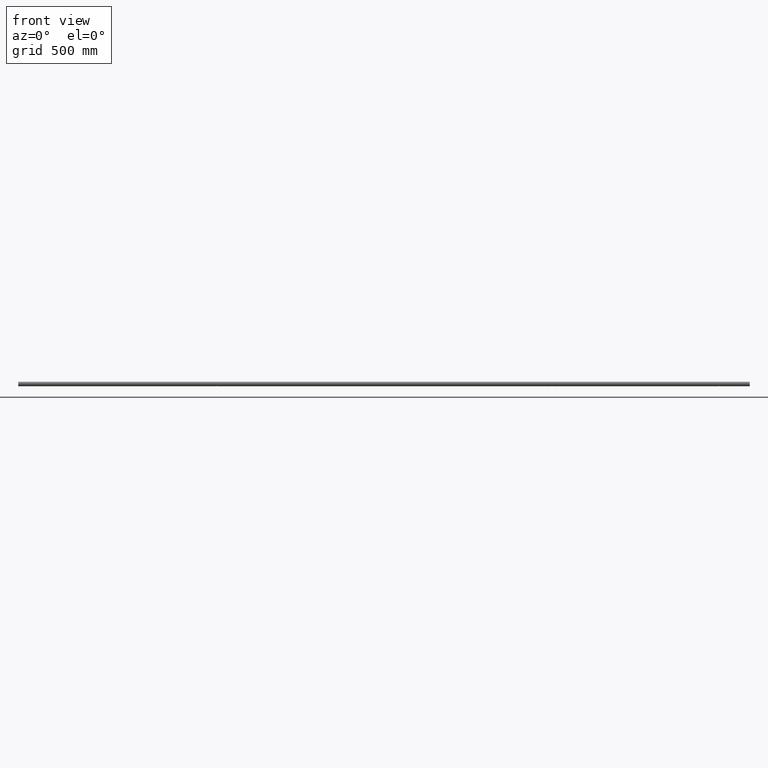
[diagram: clean part render]
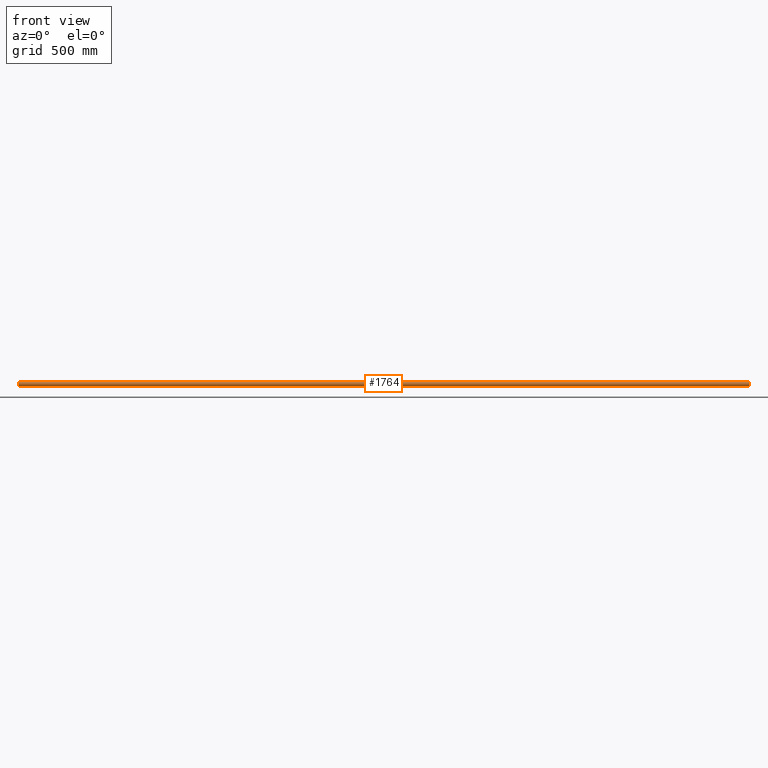
[diagram: same view with one face highlighted and labeled with its STEP entity id]
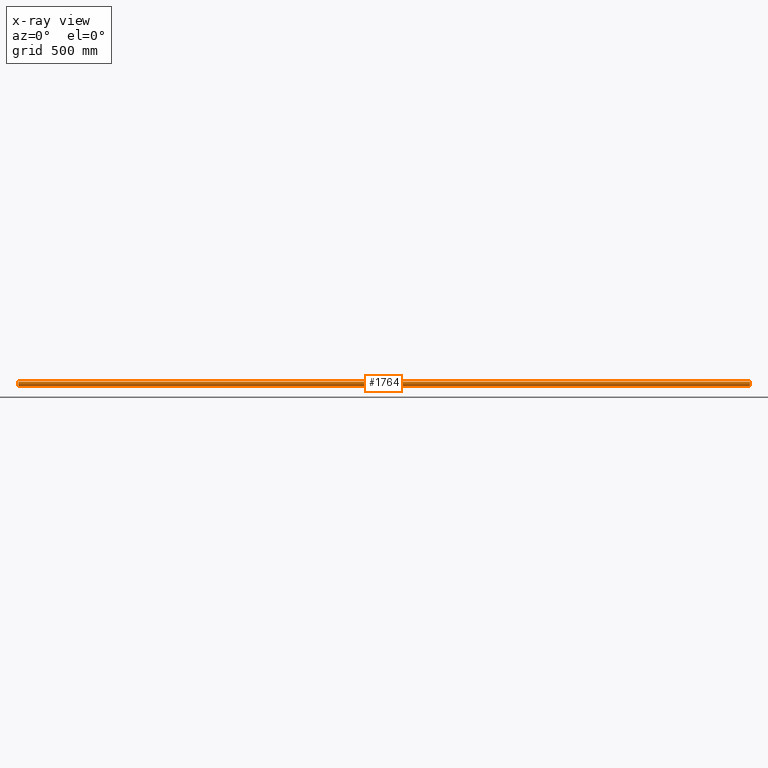
[diagram: x-ray of the same camera — body ghosted, the highlighted face saturated]
A machine part, front view. The second image highlights one B-rep face of the part: STEP entity #1764.
The next image is the same camera in x-ray: the body ghosted, the highlighted face saturated — about 0% of this face is hidden behind the body in this view.
In plain terms, the highlighted cylindrical surface (edge-blend (fillet) strip) has radius 12.5 mm, axis along (-1, -0, -0).
Its self-contained STEP definition (entity closure, byte-faithful):
#2 = CARTESIAN_POINT ( 'NONE',  ( -1882.702327577358800, -2.075249282755465200, -12.32794158140092300 ) ) ;
#201 = CARTESIAN_POINT ( 'NONE',  ( -937.9095874590755100, -2.718083123427828400, -12.20511272832640500 ) ) ;
#342 = CARTESIAN_POINT ( 'NONE',  ( -943.0536700109806800, -1.511526726006549200, -12.40999792042050500 ) ) ;
#364 = CARTESIAN_POINT ( 'NONE',  ( -2.076778553575692900, -2.701278004671923600, -12.20530089315860600 ) ) ;
#379 = VERTEX_POINT ( 'NONE', #5927 ) ;
#427 = DIRECTION ( 'NONE',  ( -1.000000000000000000, -0.0000000000000000000, -0.0000000000000000000 ) ) ;
#451 = EDGE_CURVE ( 'NONE', #1970, #15213, #7162, .T. ) ;
#482 = CARTESIAN_POINT ( 'NONE',  ( 1879.554234738915500, -3.378089484675445700, -12.03497327294807200 ) ) ;
#535 = CARTESIAN_POINT ( 'NONE',  ( 1883.225220202860600, -1.098761744103553500, -12.45332302889326700 ) ) ;
#696 = CARTESIAN_POINT ( 'NONE',  ( 1876.599999999999900, -9.932824226667062300E-015, -12.50000000000000000 ) ) ;
#720 = DIRECTION ( 'NONE',  ( 1.000000000000000000, 0.0000000000000000000, 0.0000000000000000000 ) ) ;
#744 = CARTESIAN_POINT ( 'NONE',  ( 0.8849586188828703100, -3.290362799234785500, -12.05925230465093100 ) ) ;
#780 = VERTEX_POINT ( 'NONE', #9551 ) ;
#799 = CARTESIAN_POINT ( 'NONE',  ( 1.097439066445784300, -3.225774224939500300, -12.07692960344454400 ) ) ;
#1055 = CARTESIAN_POINT ( 'NONE',  ( 942.7019317768553000, -2.075686207071268300, -12.32785800513539000 ) ) ;
#1094 = CARTESIAN_POINT ( 'NONE',  ( 2050.000000000000000, 0.0000000000000000000, 0.0000000000000000000 ) ) ;
#1202 = AXIS2_PLACEMENT_3D ( 'NONE', #2189, #5763, #8205 ) ;
#1210 = CARTESIAN_POINT ( 'NONE',  ( 1876.599999999999900, -9.932824226667062300E-015, -12.50000000000000000 ) ) ;
#1377 = CARTESIAN_POINT ( 'NONE',  ( -936.6000000000001400, -0.2225510969395910800, -12.49999999999999800 ) ) ;
#1428 = CARTESIAN_POINT ( 'NONE',  ( -940.8851843544656500, -3.290386587176774100, -12.05924650855003400 ) ) ;
#1523 = CARTESIAN_POINT ( 'NONE',  ( -937.2980682231448100, -2.075686207071268300, -12.32785800513539000 ) ) ;
#1592 = CARTESIAN_POINT ( 'NONE',  ( -1.509289143032030800, -3.054671048340748700, -12.12133177702796900 ) ) ;
#1712 = CARTESIAN_POINT ( 'NONE',  ( 1880.448006914226200, -3.377710602246637900, -12.03507891894721000 ) ) ;
#1718 = VECTOR ( 'NONE', #7351, 1000.000000000000000 ) ;
#1733 = LINE ( 'NONE', #9927, #4185 ) ;
#1764 = ADVANCED_FACE ( 'NONE', ( #15282 ), #3413, .T. ) ;
#1914 = CARTESIAN_POINT ( 'NONE',  ( 3.377728582763543000, -0.4482571319650707200, -12.49388896063694600 ) ) ;
#1969 = CARTESIAN_POINT ( 'NONE',  ( 2.090412540924479600, -2.718083123427877300, -12.20511272832640000 ) ) ;
#1970 = VERTEX_POINT ( 'NONE', #13478 ) ;
#2004 = ORIENTED_EDGE ( 'NONE', *, *, #451, .T. ) ;
#2134 = CARTESIAN_POINT ( 'NONE',  ( 940.4480069142262000, -3.377710602246517100, -12.03507891894724400 ) ) ;
#2140 = CARTESIAN_POINT ( 'NONE',  ( 2050.000000000000000, 1.530808498934191500E-015, -12.50000000000000000 ) ) ;
#2184 = CARTESIAN_POINT ( 'NONE',  ( 942.0904125409243800, -2.718083123427828400, -12.20511272832640500 ) ) ;
#2189 = CARTESIAN_POINT ( 'NONE',  ( 2050.000000000000000, 0.0000000000000000000, 0.0000000000000000000 ) ) ;
#2238 = CARTESIAN_POINT ( 'NONE',  ( -1877.051946665332000, -1.708183272649724100, -12.38412960736628500 ) ) ;
#2285 = CARTESIAN_POINT ( 'NONE',  ( -1882.949123524426300, -1.706430297025294900, -12.38438124661079500 ) ) ;
#2338 = CARTESIAN_POINT ( 'NONE',  ( -1882.559440054320500, -2.248989797497722900, -12.29704468854002600 ) ) ;
#2420 = ORIENTED_EDGE ( 'NONE', *, *, #9092, .T. ) ;
#2484 = EDGE_CURVE ( 'NONE', #1970, #2924, #9575, .T. ) ;
#2570 = B_SPLINE_CURVE_WITH_KNOTS ( 'NONE', 3,
 ( #696, #11415, #4243, #15086, #9102, #11520, #12538, #4190, #4344, #5448, #13987, #10149, #7805, #6768, #7701, #482, #5395, #8889, #1712, #14984, #6602, #10093, #2923, #11311, #4135, #15041, #5345, #535, #8944, #2983, #10201, #4769 ),
 .UNSPECIFIED., .F., .F.,
 ( 4, 2, 2, 2, 2, 2, 2, 2, 2, 2, 2, 2, 2, 2, 2, 4 ),
 ( 9.720594809790037100E-018, 0.0006675304755107431400, 0.001335060951021476500, 0.002002591426532209900, 0.002670121902042943100, 0.003337652377553676700, 0.004005182853064410300, 0.004672713328575143000, 0.005340243804085876600, 0.006007774279596610200, 0.006675304755107343800, 0.008010365706129419000, 0.008677896181640224600, 0.009345426657151028500, 0.01001295713266183600, 0.01068048760817264100 ),
 .UNSPECIFIED. ) ;
#2635 = CARTESIAN_POINT ( 'NONE',  ( -938.9025609335540100, -3.225774224939494900, -12.07692960344454000 ) ) ;
#2678 = CARTESIAN_POINT ( 'NONE',  ( -943.2906811211504400, -0.8836557597777396900, -12.47063843226399300 ) ) ;
#2691 = VECTOR ( 'NONE', #14098, 1000.000000000000000 ) ;
#2703 = CARTESIAN_POINT ( 'NONE',  ( -3.290681121150602600, -0.8836557597777386900, -12.47063843226399100 ) ) ;
#2783 = CARTESIAN_POINT ( 'NONE',  ( -936.6222714172364500, -0.4482571319650472400, -12.49388896063694300 ) ) ;
#2790 = LINE ( 'NONE', #8701, #7315 ) ;
#2804 = CARTESIAN_POINT ( 'NONE',  ( -0.8851843544657876900, -3.290386587176837600, -12.05924650855002200 ) ) ;
#2923 = CARTESIAN_POINT ( 'NONE',  ( 1882.090412540924700, -2.718083123427897700, -12.20511272832639300 ) ) ;
#2924 = VERTEX_POINT ( 'NONE', #8900 ) ;
#2983 = CARTESIAN_POINT ( 'NONE',  ( 1883.377728582763700, -0.4482571319650916500, -12.49388896063694300 ) ) ;
#3022 = AXIS2_PLACEMENT_3D ( 'NONE', #13921, #6698, #4381 ) ;
#3128 = VERTEX_POINT ( 'NONE', #8077 ) ;
#3292 = CARTESIAN_POINT ( 'NONE',  ( 937.9232214464242400, -2.701278004671885800, -12.20530089315861700 ) ) ;
#3340 = CARTESIAN_POINT ( 'NONE',  ( 940.2214708092431000, -3.400096623084107000, -12.02868833097944700 ) ) ;
#3389 = CARTESIAN_POINT ( 'NONE',  ( 941.0974390664456500, -3.225774224939494900, -12.07692960344454000 ) ) ;
#3395 = CARTESIAN_POINT ( 'NONE',  ( -1877.909587459075500, -2.718083123427897700, -12.20511272832639300 ) ) ;
#3413 = CYLINDRICAL_SURFACE ( 'NONE', #1202, 12.50000000000000000 ) ;
#3497 = CARTESIAN_POINT ( 'NONE',  ( -1883.399999999999900, -9.932824226667062300E-015, -12.50000000000000000 ) ) ;
#3691 = ORIENTED_EDGE ( 'NONE', *, *, #9382, .T. ) ;
#3728 = VERTEX_POINT ( 'NONE', #12229 ) ;
#3901 = CARTESIAN_POINT ( 'NONE',  ( -941.7054526404525600, -2.949803944381664200, -12.14763061015492900 ) ) ;
#3913 = ORIENTED_EDGE ( 'NONE', *, *, #7704, .T. ) ;
#3921 = CARTESIAN_POINT ( 'NONE',  ( -3.224770506350070200, -1.100213052444122700, -12.45320411249670300 ) ) ;
#3943 = CARTESIAN_POINT ( 'NONE',  ( -937.4379886708794600, -2.246229744202054700, -12.29756642919714300 ) ) ;
#3991 = CARTESIAN_POINT ( 'NONE',  ( -942.2472831817785800, -2.560938656392412100, -12.23588396395595300 ) ) ;
#4128 = CARTESIAN_POINT ( 'NONE',  ( -3.399999999999987900, -3.085611381634476200E-019, -12.50000000000000000 ) ) ;
#4135 = CARTESIAN_POINT ( 'NONE',  ( 1882.701931776855400, -2.075686207071323300, -12.32785800513537900 ) ) ;
#4173 = VECTOR ( 'NONE', #12690, 1000.000000000000000 ) ;
#4185 = VECTOR ( 'NONE', #427, 1000.000000000000000 ) ;
#4190 = CARTESIAN_POINT ( 'NONE',  ( 1877.297672422640300, -2.075249282755465200, -12.32794158140092300 ) ) ;
#4221 = ORIENTED_EDGE ( 'NONE', *, *, #4880, .F. ) ;
#4243 = CARTESIAN_POINT ( 'NONE',  ( 1876.622267002547500, -0.4476042234037827500, -12.49389134214153100 ) ) ;
#4247 = ORIENTED_EDGE ( 'NONE', *, *, #12972, .T. ) ;
#4291 = CARTESIAN_POINT ( 'NONE',  ( 0.4480069142262558800, -3.377710602246544200, -12.03507891894723500 ) ) ;
#4304 = ORIENTED_EDGE ( 'NONE', *, *, #12801, .F. ) ;
#4344 = CARTESIAN_POINT ( 'NONE',  ( 1877.440559945678600, -2.248989797497722900, -12.29704468854002600 ) ) ;
#4381 = DIRECTION ( 'NONE',  ( 0.0000000000000000000, 0.0000000000000000000, -1.000000000000000000 ) ) ;
#4503 = CARTESIAN_POINT ( 'NONE',  ( 942.9480533346677500, -1.708183272649670600, -12.38412960736629600 ) ) ;
#4551 = CARTESIAN_POINT ( 'NONE',  ( 943.2899460591240800, -0.8867016201782428300, -12.47044329820943000 ) ) ;
#4603 = CARTESIAN_POINT ( 'NONE',  ( 936.6000000000000200, 1.240253457150525300E-014, -12.50000000000000000 ) ) ;
#4656 = CARTESIAN_POINT ( 'NONE',  ( -1883.224770506349400, -1.100213052444138300, -12.45320411249670500 ) ) ;
#4700 = CARTESIAN_POINT ( 'NONE',  ( 937.2976724226412000, -2.075249282755358600, -12.32794158140094800 ) ) ;
#4705 = CARTESIAN_POINT ( 'NONE',  ( -1879.551993085774300, -3.377710602246637900, -12.03507891894721000 ) ) ;
#4769 = CARTESIAN_POINT ( 'NONE',  ( 1883.399999999999900, 1.530817149939125600E-015, -12.50000000000000000 ) ) ;
#4788 = EDGE_CURVE ( 'NONE', #379, #3728, #2790, .T. ) ;
#4880 = EDGE_CURVE ( 'NONE', #6547, #379, #5051, .T. ) ;
#5005 = CARTESIAN_POINT ( 'NONE',  ( -942.0767785535758800, -2.701278004671885800, -12.20530089315861700 ) ) ;
#5051 = CIRCLE ( 'NONE', #15560, 12.50000000000000000 ) ;
#5079 = EDGE_CURVE ( 'NONE', #6547, #6556, #5115, .T. ) ;
#5115 = LINE ( 'NONE', #15175, #4173 ) ;
#5174 = CARTESIAN_POINT ( 'NONE',  ( -2.949123524426435800, -1.706430297025202800, -12.38438124661081100 ) ) ;
#5205 = CARTESIAN_POINT ( 'NONE',  ( -941.1006064769321700, -3.224536294380859300, -12.07725403179794700 ) ) ;
#5345 = CARTESIAN_POINT ( 'NONE',  ( 1883.054883340169200, -1.508976641703941400, -12.41029900232306100 ) ) ;
#5395 = CARTESIAN_POINT ( 'NONE',  ( 1879.775572362254500, -3.399902734060400000, -12.02874313505271600 ) ) ;
#5448 = CARTESIAN_POINT ( 'NONE',  ( 1877.752716818221600, -2.560938656392546300, -12.23588396395592600 ) ) ;
#5484 = CARTESIAN_POINT ( 'NONE',  ( 3.289946059124464000, -0.8867016201782708100, -12.47044329820943200 ) ) ;
#5595 = CARTESIAN_POINT ( 'NONE',  ( 3.054883340169159300, -1.508976641703949000, -12.41029900232305900 ) ) ;
#5702 = CARTESIAN_POINT ( 'NONE',  ( 943.2252202028612400, -1.098761744103555300, -12.45332302889326900 ) ) ;
#5758 = CARTESIAN_POINT ( 'NONE',  ( 941.7169160836186800, -2.968529363370429100, -12.14369076542070200 ) ) ;
#5763 = DIRECTION ( 'NONE',  ( -1.000000000000000000, -0.0000000000000000000, -0.0000000000000000000 ) ) ;
#5813 = CARTESIAN_POINT ( 'NONE',  ( -1882.076778553575700, -2.701278004672002600, -12.20530089315859000 ) ) ;
#5852 = CARTESIAN_POINT ( 'NONE',  ( 936.7752294936501600, -1.100213052444112300, -12.45320411249670800 ) ) ;
#5857 = CARTESIAN_POINT ( 'NONE',  ( -1880.224427637746200, -3.399902734060400000, -12.02874313505271600 ) ) ;
#5914 = CARTESIAN_POINT ( 'NONE',  ( -1878.283083916381000, -2.968529363370431300, -12.14369076542070200 ) ) ;
#5927 = CARTESIAN_POINT ( 'NONE',  ( 2050.000000000000000, 1.530808498934191500E-015, -12.50000000000000000 ) ) ;
#5963 = CIRCLE ( 'NONE', #3022, 12.50000000000000000 ) ;
#5967 = CARTESIAN_POINT ( 'NONE',  ( -1879.778529190756900, -3.400096623084212200, -12.02868833097942600 ) ) ;
#6018 = CARTESIAN_POINT ( 'NONE',  ( -1883.399999999999600, -0.2257922536967062700, -12.50000000000000200 ) ) ;
#6223 = CARTESIAN_POINT ( 'NONE',  ( -943.3777329974519700, -0.4476042234037524400, -12.49389134214153300 ) ) ;
#6245 = CARTESIAN_POINT ( 'NONE',  ( 2050.000000000000000, 1.530808498934191500E-015, -12.50000000000000000 ) ) ;
#6267 = CARTESIAN_POINT ( 'NONE',  ( -939.5519930857736900, -3.377710602246517100, -12.03507891894724400 ) ) ;
#6317 = CARTESIAN_POINT ( 'NONE',  ( -938.2830839163809700, -2.968529363370429100, -12.14369076542070200 ) ) ;
#6387 = EDGE_LOOP ( 'NONE', ( #8846, #4221, #8746, #10639, #12651, #2004, #7801, #3691, #13246, #3913, #11990, #2420, #4304, #4247 ) ) ;
#6390 = CARTESIAN_POINT ( 'NONE',  ( -2.247283181778617000, -2.560938656392451200, -12.23588396395594200 ) ) ;
#6424 = CARTESIAN_POINT ( 'NONE',  ( 2050.000000000000000, 1.530808498934191500E-015, -12.50000000000000000 ) ) ;
#6535 = CARTESIAN_POINT ( 'NONE',  ( -943.3999999999998600, 1.240253457150525300E-014, -12.50000000000000000 ) ) ;
#6547 = VERTEX_POINT ( 'NONE', #7869 ) ;
#6556 = VERTEX_POINT ( 'NONE', #13995 ) ;
#6576 = B_SPLINE_CURVE_WITH_KNOTS ( 'NONE', 3,
 ( #4603, #10616, #7064, #14256, #5852, #15345, #10671, #4700, #15544, #14312, #3292, #15494, #8101, #11676, #9295, #15446, #10563, #3340, #2134, #8201, #3389, #5758, #2184, #11782, #1055, #4503, #12904, #5702, #4551, #13013, #14148, #6916 ),
 .UNSPECIFIED., .F., .F.,
 ( 4, 2, 2, 2, 2, 2, 2, 2, 2, 2, 2, 2, 2, 2, 2, 4 ),
 ( 1.197015388918840900E-017, 0.0006675304755107222200, 0.001335060951021432500, 0.002002591426532143100, 0.002670121902042853300, 0.003337652377553563000, 0.004005182853064274100, 0.004672713328574984300, 0.005340243804085694500, 0.006007774279596404600, 0.006675304755107113900, 0.008010365706128837900, 0.008677896181639699000, 0.009345426657150558400, 0.01001295713266142100, 0.01068048760817228200 ),
 .UNSPECIFIED. ) ;
#6602 = CARTESIAN_POINT ( 'NONE',  ( 1881.097439066446400, -3.225774224939543800, -12.07692960344453700 ) ) ;
#6652 = CARTESIAN_POINT ( 'NONE',  ( 3.399999999999987900, 1.530817148184698900E-015, -12.50000000000000000 ) ) ;
#6698 = DIRECTION ( 'NONE',  ( 1.000000000000000000, 0.0000000000000000000, 0.0000000000000000000 ) ) ;
#6768 = CARTESIAN_POINT ( 'NONE',  ( 1878.899393523066900, -3.224536294380904600, -12.07725403179793300 ) ) ;
#6809 = CARTESIAN_POINT ( 'NONE',  ( 3.399999999999987000, -0.2225510969395936800, -12.50000000000000000 ) ) ;
#6916 = CARTESIAN_POINT ( 'NONE',  ( 943.3999999999998600, 1.530817147818667500E-015, -12.50000000000000000 ) ) ;
#7015 = DIRECTION ( 'NONE',  ( -1.000000000000000000, -0.0000000000000000000, -0.0000000000000000000 ) ) ;
#7064 = CARTESIAN_POINT ( 'NONE',  ( 936.6222670025480300, -0.4476042234037524400, -12.49389134214153300 ) ) ;
#7070 = CARTESIAN_POINT ( 'NONE',  ( -1878.902560933554700, -3.225774224939543800, -12.07692960344453700 ) ) ;
#7123 = CARTESIAN_POINT ( 'NONE',  ( -1876.622271417236300, -0.4482571319650916500, -12.49388896063694300 ) ) ;
#7158 = VECTOR ( 'NONE', #8866, 1000.000000000000000 ) ;
#7162 = B_SPLINE_CURVE_WITH_KNOTS ( 'NONE', 3,
 ( #3497, #6018, #14473, #15549, #4656, #9400, #2285, #2, #2338, #15450, #5813, #13072, #11890, #11944, #13124, #13172, #5857, #5967, #4705, #14317, #7070, #5914, #3395, #10568, #14420, #2238, #7226, #14364, #8207, #7123, #10621, #8304 ),
 .UNSPECIFIED., .F., .F.,
 ( 4, 2, 2, 2, 2, 2, 2, 2, 2, 2, 2, 2, 2, 2, 2, 4 ),
 ( 9.720594809790037100E-018, 0.0006675304755107431400, 0.001335060951021476500, 0.002002591426532209900, 0.002670121902042943100, 0.003337652377553676700, 0.004005182853064410300, 0.004672713328575143000, 0.005340243804085876600, 0.006007774279596610200, 0.006675304755107343800, 0.008010365706129419000, 0.008677896181640224600, 0.009345426657151028500, 0.01001295713266183600, 0.01068048760817264100 ),
 .UNSPECIFIED. ) ;
#7226 = CARTESIAN_POINT ( 'NONE',  ( -1876.945116659830500, -1.508976641703941400, -12.41029900232306100 ) ) ;
#7303 = VERTEX_POINT ( 'NONE', #13525 ) ;
#7315 = VECTOR ( 'NONE', #12672, 1000.000000000000000 ) ;
#7351 = DIRECTION ( 'NONE',  ( -1.000000000000000000, -0.0000000000000000000, -0.0000000000000000000 ) ) ;
#7475 = CARTESIAN_POINT ( 'NONE',  ( -936.6000000000000200, 1.530817147818667500E-015, -12.50000000000000000 ) ) ;
#7540 = CARTESIAN_POINT ( 'NONE',  ( -2.702327577358867700, -2.075249282755369200, -12.32794158140094100 ) ) ;
#7565 = CARTESIAN_POINT ( 'NONE',  ( -936.7100539408753500, -0.8867016201782428300, -12.47044329820943000 ) ) ;
#7587 = CARTESIAN_POINT ( 'NONE',  ( 936.6000000000000200, 1.240253457150525300E-014, -12.50000000000000000 ) ) ;
#7701 = CARTESIAN_POINT ( 'NONE',  ( 1879.114815645534500, -3.290386587176946400, -12.05924650854999100 ) ) ;
#7704 = EDGE_CURVE ( 'NONE', #780, #3128, #11791, .T. ) ;
#7731 = B_SPLINE_CURVE_WITH_KNOTS ( 'NONE', 3,
 ( #12341, #9802, #6223, #2678, #11071, #342, #12241, #9902, #13524, #3991, #5005, #3901, #8702, #5205, #1428, #11117, #13623, #13472, #6267, #12289, #2635, #6317, #201, #3943, #1523, #14701, #11164, #12394, #7565, #2783, #1377, #7475 ),
 .UNSPECIFIED., .F., .F.,
 ( 4, 2, 2, 2, 2, 2, 2, 2, 2, 2, 2, 2, 2, 2, 2, 4 ),
 ( 1.197015388918840900E-017, 0.0006675304755107222200, 0.001335060951021432500, 0.002002591426532143100, 0.002670121902042853300, 0.003337652377553563000, 0.004005182853064274100, 0.004672713328574984300, 0.005340243804085694500, 0.006007774279596404600, 0.006675304755107113900, 0.008010365706128837900, 0.008677896181639699000, 0.009345426657150558400, 0.01001295713266142100, 0.01068048760817228200 ),
 .UNSPECIFIED. ) ;
#7770 = VERTEX_POINT ( 'NONE', #7851 ) ;
#7801 = ORIENTED_EDGE ( 'NONE', *, *, #7840, .F. ) ;
#7805 = CARTESIAN_POINT ( 'NONE',  ( 1878.490710856967600, -3.054671048340755300, -12.12133177702796700 ) ) ;
#7840 = EDGE_CURVE ( 'NONE', #13337, #15213, #12512, .T. ) ;
#7851 = CARTESIAN_POINT ( 'NONE',  ( 943.3999999999998600, 1.530817147818667500E-015, -12.50000000000000000 ) ) ;
#7869 = CARTESIAN_POINT ( 'NONE',  ( 2050.000000000000000, 0.0000000000000000000, 12.50000000000000000 ) ) ;
#8077 = CARTESIAN_POINT ( 'NONE',  ( 3.399999999999987900, 1.530817148184698900E-015, -12.50000000000000000 ) ) ;
#8101 = CARTESIAN_POINT ( 'NONE',  ( 938.4907108569680100, -3.054671048340733100, -12.12133177702797600 ) ) ;
#8159 = CARTESIAN_POINT ( 'NONE',  ( 2050.000000000000000, 1.530808498934191500E-015, -12.50000000000000000 ) ) ;
#8201 = CARTESIAN_POINT ( 'NONE',  ( 940.8849586188829300, -3.290362799234757100, -12.05925230465093600 ) ) ;
#8205 = DIRECTION ( 'NONE',  ( 0.0000000000000000000, 0.0000000000000000000, 1.000000000000000000 ) ) ;
#8207 = CARTESIAN_POINT ( 'NONE',  ( -1876.710053940874800, -0.8867016201782892400, -12.47044329820942800 ) ) ;
#8304 = CARTESIAN_POINT ( 'NONE',  ( -1876.599999999999900, 1.530817149939125600E-015, -12.50000000000000000 ) ) ;
#8701 = CARTESIAN_POINT ( 'NONE',  ( 2050.000000000000000, 1.530808498934191500E-015, -12.50000000000000000 ) ) ;
#8702 = CARTESIAN_POINT ( 'NONE',  ( -941.5092891430318800, -3.054671048340733100, -12.12133177702797600 ) ) ;
#8723 = CARTESIAN_POINT ( 'NONE',  ( -2.559440054320827300, -2.248989797497623400, -12.29704468854004800 ) ) ;
#8746 = ORIENTED_EDGE ( 'NONE', *, *, #5079, .T. ) ;
#8773 = CARTESIAN_POINT ( 'NONE',  ( -1.705452640452510800, -2.949803944381699700, -12.14763061015491800 ) ) ;
#8846 = ORIENTED_EDGE ( 'NONE', *, *, #4788, .F. ) ;
#8866 = DIRECTION ( 'NONE',  ( -1.000000000000000000, -0.0000000000000000000, -0.0000000000000000000 ) ) ;
#8889 = CARTESIAN_POINT ( 'NONE',  ( 1880.221470809244200, -3.400096623084212200, -12.02868833097942600 ) ) ;
#8900 = CARTESIAN_POINT ( 'NONE',  ( -2050.000000000000000, 1.530808498934191500E-015, -12.50000000000000000 ) ) ;
#8944 = CARTESIAN_POINT ( 'NONE',  ( 1883.289946059124100, -0.8867016201782892400, -12.47044329820942800 ) ) ;
#9092 = EDGE_CURVE ( 'NONE', #9793, #7770, #6576, .T. ) ;
#9102 = CARTESIAN_POINT ( 'NONE',  ( 1876.775229493649200, -1.100213052444138300, -12.45320411249670500 ) ) ;
#9184 = VERTEX_POINT ( 'NONE', #1210 ) ;
#9295 = CARTESIAN_POINT ( 'NONE',  ( 939.1148156455337800, -3.290386587176774100, -12.05924650855003400 ) ) ;
#9382 = EDGE_CURVE ( 'NONE', #13337, #7303, #7731, .T. ) ;
#9400 = CARTESIAN_POINT ( 'NONE',  ( -1883.053670010980800, -1.511526726006590500, -12.40999792042050000 ) ) ;
#9551 = CARTESIAN_POINT ( 'NONE',  ( -3.399999999999987900, -3.085611381634476200E-019, -12.50000000000000000 ) ) ;
#9575 = LINE ( 'NONE', #6424, #7158 ) ;
#9793 = VERTEX_POINT ( 'NONE', #7587 ) ;
#9802 = CARTESIAN_POINT ( 'NONE',  ( -943.4000000000002000, -0.2257922536966986700, -12.50000000000000000 ) ) ;
#9902 = CARTESIAN_POINT ( 'NONE',  ( -942.7023275773589100, -2.075249282755358600, -12.32794158140094800 ) ) ;
#9927 = CARTESIAN_POINT ( 'NONE',  ( 2050.000000000000000, 1.530808498934191500E-015, -12.50000000000000000 ) ) ;
#9970 = CARTESIAN_POINT ( 'NONE',  ( -1.100606476932582500, -3.224536294380879700, -12.07725403179794600 ) ) ;
#10093 = CARTESIAN_POINT ( 'NONE',  ( 1881.716916083619300, -2.968529363370431300, -12.14369076542070200 ) ) ;
#10149 = CARTESIAN_POINT ( 'NONE',  ( 1878.294547359546900, -2.949803944381774700, -12.14763061015489700 ) ) ;
#10194 = CARTESIAN_POINT ( 'NONE',  ( -0.2244276377459111500, -3.399902734060312100, -12.02874313505273700 ) ) ;
#10201 = CARTESIAN_POINT ( 'NONE',  ( 1883.399999999999400, -0.2225510969395958500, -12.49999999999999600 ) ) ;
#10563 = CARTESIAN_POINT ( 'NONE',  ( 939.7755723622541400, -3.399902734060280500, -12.02874313505274300 ) ) ;
#10568 = CARTESIAN_POINT ( 'NONE',  ( -1877.437988670878900, -2.246229744202111500, -12.29756642919713400 ) ) ;
#10616 = CARTESIAN_POINT ( 'NONE',  ( 936.5999999999998000, -0.2257922536966986700, -12.50000000000000000 ) ) ;
#10621 = CARTESIAN_POINT ( 'NONE',  ( -1876.599999999999700, -0.2225510969395958500, -12.49999999999999600 ) ) ;
#10639 = ORIENTED_EDGE ( 'NONE', *, *, #12059, .T. ) ;
#10671 = CARTESIAN_POINT ( 'NONE',  ( 937.0508764755735500, -1.706430297025199200, -12.38438124661081100 ) ) ;
#10916 = EDGE_CURVE ( 'NONE', #780, #7303, #14586, .T. ) ;
#11071 = CARTESIAN_POINT ( 'NONE',  ( -943.2247705063499600, -1.100213052444112300, -12.45320411249670800 ) ) ;
#11117 = CARTESIAN_POINT ( 'NONE',  ( -940.4457652610848300, -3.378089484675302700, -12.03497327294810600 ) ) ;
#11164 = CARTESIAN_POINT ( 'NONE',  ( -936.9451166598308900, -1.508976641703934500, -12.41029900232306300 ) ) ;
#11194 = CARTESIAN_POINT ( 'NONE',  ( -0.4457652610848898400, -3.378089484675349800, -12.03497327294808800 ) ) ;
#11311 = CARTESIAN_POINT ( 'NONE',  ( 1882.562011329120400, -2.246229744202111500, -12.29756642919713400 ) ) ;
#11415 = CARTESIAN_POINT ( 'NONE',  ( 1876.599999999999900, -0.2257922536967062700, -12.50000000000000200 ) ) ;
#11512 = CARTESIAN_POINT ( 'NONE',  ( 2.701931776855448100, -2.075686207071247800, -12.32785800513539300 ) ) ;
#11520 = CARTESIAN_POINT ( 'NONE',  ( 1876.946329989019700, -1.511526726006590500, -12.40999792042050000 ) ) ;
#11676 = CARTESIAN_POINT ( 'NONE',  ( 938.8993935230671500, -3.224536294380859300, -12.07725403179794700 ) ) ;
#11782 = CARTESIAN_POINT ( 'NONE',  ( 942.5620113291200800, -2.246229744202054700, -12.29756642919714300 ) ) ;
#11791 = B_SPLINE_CURVE_WITH_KNOTS ( 'NONE', 3,
 ( #4128, #12532, #13757, #2703, #3921, #12311, #5174, #7540, #8723, #6390, #364, #8773, #1592, #9970, #2804, #11194, #10194, #15184, #4291, #744, #799, #12693, #1969, #13871, #11512, #15131, #5595, #13817, #5484, #1914, #6809, #6652 ),
 .UNSPECIFIED., .F., .F.,
 ( 4, 2, 2, 2, 2, 2, 2, 2, 2, 2, 2, 2, 2, 2, 2, 4 ),
 ( 7.473672456940466300E-020, 0.0006675304755107752300, 0.001335060951021550200, 0.002002591426532325300, 0.002670121902043100100, 0.003337652377553874400, 0.004005182853064649700, 0.004672713328575424900, 0.005340243804086200100, 0.006007774279596974500, 0.006675304755107750600, 0.008010365706129299300, 0.008677896181640073700, 0.009345426657150846300, 0.01001295713266162100, 0.01068048760817239500 ),
 .UNSPECIFIED. ) ;
#11890 = CARTESIAN_POINT ( 'NONE',  ( -1881.509289143032200, -3.054671048340755300, -12.12133177702796700 ) ) ;
#11944 = CARTESIAN_POINT ( 'NONE',  ( -1881.100606476932400, -3.224536294380904600, -12.07725403179793300 ) ) ;
#11990 = ORIENTED_EDGE ( 'NONE', *, *, #14601, .F. ) ;
#12059 = EDGE_CURVE ( 'NONE', #6556, #2924, #5963, .T. ) ;
#12138 = VECTOR ( 'NONE', #7015, 1000.000000000000000 ) ;
#12229 = CARTESIAN_POINT ( 'NONE',  ( 1883.399999999999900, 1.530817149939125600E-015, -12.50000000000000000 ) ) ;
#12241 = CARTESIAN_POINT ( 'NONE',  ( -942.9491235244263400, -1.706430297025199200, -12.38438124661081100 ) ) ;
#12289 = CARTESIAN_POINT ( 'NONE',  ( -939.1150413811170700, -3.290362799234757100, -12.05925230465093600 ) ) ;
#12311 = CARTESIAN_POINT ( 'NONE',  ( -3.053670010980488400, -1.511526726006567000, -12.40999792042050700 ) ) ;
#12341 = CARTESIAN_POINT ( 'NONE',  ( -943.3999999999998600, 1.240253457150525300E-014, -12.50000000000000000 ) ) ;
#12394 = CARTESIAN_POINT ( 'NONE',  ( -936.7747797971383100, -1.098761744103555300, -12.45332302889326900 ) ) ;
#12512 = LINE ( 'NONE', #8159, #12138 ) ;
#12532 = CARTESIAN_POINT ( 'NONE',  ( -3.399999999999987900, -0.2257922536967011100, -12.50000000000000200 ) ) ;
#12538 = CARTESIAN_POINT ( 'NONE',  ( 1877.050876475573200, -1.706430297025294900, -12.38438124661079500 ) ) ;
#12651 = ORIENTED_EDGE ( 'NONE', *, *, #2484, .F. ) ;
#12672 = DIRECTION ( 'NONE',  ( -1.000000000000000000, -0.0000000000000000000, -0.0000000000000000000 ) ) ;
#12690 = DIRECTION ( 'NONE',  ( -1.000000000000000000, -0.0000000000000000000, -0.0000000000000000000 ) ) ;
#12693 = CARTESIAN_POINT ( 'NONE',  ( 1.716916083618982300, -2.968529363370417500, -12.14369076542070800 ) ) ;
#12725 = DIRECTION ( 'NONE',  ( 0.0000000000000000000, 0.0000000000000000000, -1.000000000000000000 ) ) ;
#12801 = EDGE_CURVE ( 'NONE', #9184, #7770, #1733, .T. ) ;
#12904 = CARTESIAN_POINT ( 'NONE',  ( 943.0548833401691100, -1.508976641703934500, -12.41029900232306300 ) ) ;
#12972 = EDGE_CURVE ( 'NONE', #9184, #3728, #2570, .T. ) ;
#13013 = CARTESIAN_POINT ( 'NONE',  ( 943.3777285827633200, -0.4482571319650472400, -12.49388896063694300 ) ) ;
#13072 = CARTESIAN_POINT ( 'NONE',  ( -1881.705452640452000, -2.949803944381774700, -12.14763061015489700 ) ) ;
#13124 = CARTESIAN_POINT ( 'NONE',  ( -1880.885184354465300, -3.290386587176946400, -12.05924650854999100 ) ) ;
#13172 = CARTESIAN_POINT ( 'NONE',  ( -1880.445765261085200, -3.378089484675445700, -12.03497327294807200 ) ) ;
#13197 = LINE ( 'NONE', #6245, #1718 ) ;
#13246 = ORIENTED_EDGE ( 'NONE', *, *, #10916, .F. ) ;
#13337 = VERTEX_POINT ( 'NONE', #6535 ) ;
#13472 = CARTESIAN_POINT ( 'NONE',  ( -939.7785291907566700, -3.400096623084107000, -12.02868833097944700 ) ) ;
#13478 = CARTESIAN_POINT ( 'NONE',  ( -1883.399999999999900, -9.932824226667062300E-015, -12.50000000000000000 ) ) ;
#13524 = CARTESIAN_POINT ( 'NONE',  ( -942.5594400543210400, -2.248989797497584800, -12.29704468854005300 ) ) ;
#13525 = CARTESIAN_POINT ( 'NONE',  ( -936.6000000000000200, 1.530817147818667500E-015, -12.50000000000000000 ) ) ;
#13623 = CARTESIAN_POINT ( 'NONE',  ( -940.2244276377458600, -3.399902734060280500, -12.02874313505274300 ) ) ;
#13757 = CARTESIAN_POINT ( 'NONE',  ( -3.377732997452060500, -0.4476042234037460000, -12.49389134214153100 ) ) ;
#13817 = CARTESIAN_POINT ( 'NONE',  ( 3.225220202861458100, -1.098761744103564900, -12.45332302889326700 ) ) ;
#13871 = CARTESIAN_POINT ( 'NONE',  ( 2.562011329120406100, -2.246229744202104900, -12.29756642919713400 ) ) ;
#13921 = CARTESIAN_POINT ( 'NONE',  ( -2050.000000000000000, 0.0000000000000000000, 0.0000000000000000000 ) ) ;
#13987 = CARTESIAN_POINT ( 'NONE',  ( 1877.923221446424300, -2.701278004672002600, -12.20530089315859000 ) ) ;
#13995 = CARTESIAN_POINT ( 'NONE',  ( -2050.000000000000000, 0.0000000000000000000, 12.50000000000000000 ) ) ;
#14098 = DIRECTION ( 'NONE',  ( -1.000000000000000000, -0.0000000000000000000, -0.0000000000000000000 ) ) ;
#14148 = CARTESIAN_POINT ( 'NONE',  ( 943.3999999999999800, -0.2225510969395910800, -12.49999999999999800 ) ) ;
#14256 = CARTESIAN_POINT ( 'NONE',  ( 936.7093188788493300, -0.8836557597777396900, -12.47063843226399300 ) ) ;
#14312 = CARTESIAN_POINT ( 'NONE',  ( 937.7527168182214200, -2.560938656392412100, -12.23588396395595300 ) ) ;
#14317 = CARTESIAN_POINT ( 'NONE',  ( -1879.115041381117600, -3.290362799234904500, -12.05925230465089900 ) ) ;
#14364 = CARTESIAN_POINT ( 'NONE',  ( -1876.774779797137600, -1.098761744103553500, -12.45332302889326700 ) ) ;
#14420 = CARTESIAN_POINT ( 'NONE',  ( -1877.298068223144100, -2.075686207071323300, -12.32785800513537900 ) ) ;
#14473 = CARTESIAN_POINT ( 'NONE',  ( -1883.377732997452100, -0.4476042234037827500, -12.49389134214153100 ) ) ;
#14586 = LINE ( 'NONE', #2140, #2691 ) ;
#14601 = EDGE_CURVE ( 'NONE', #9793, #3128, #13197, .T. ) ;
#14701 = CARTESIAN_POINT ( 'NONE',  ( -937.0519466653323700, -1.708183272649670600, -12.38412960736629600 ) ) ;
#14896 = CARTESIAN_POINT ( 'NONE',  ( -1876.599999999999900, 1.530817149939125600E-015, -12.50000000000000000 ) ) ;
#14984 = CARTESIAN_POINT ( 'NONE',  ( 1880.884958618883000, -3.290362799234904500, -12.05925230465089900 ) ) ;
#15041 = CARTESIAN_POINT ( 'NONE',  ( 1882.948053334668200, -1.708183272649724100, -12.38412960736628500 ) ) ;
#15086 = CARTESIAN_POINT ( 'NONE',  ( 1876.709318878849200, -0.8836557597777842100, -12.47063843226398200 ) ) ;
#15131 = CARTESIAN_POINT ( 'NONE',  ( 2.948053334667982000, -1.708183272649644200, -12.38412960736629700 ) ) ;
#15175 = CARTESIAN_POINT ( 'NONE',  ( 2050.000000000000000, 0.0000000000000000000, 12.50000000000000000 ) ) ;
#15184 = CARTESIAN_POINT ( 'NONE',  ( 0.2214708092432761400, -3.400096623084132700, -12.02868833097944200 ) ) ;
#15213 = VERTEX_POINT ( 'NONE', #14896 ) ;
#15282 = FACE_OUTER_BOUND ( 'NONE', #6387, .T. ) ;
#15345 = CARTESIAN_POINT ( 'NONE',  ( 936.9463299890195500, -1.511526726006549200, -12.40999792042050500 ) ) ;
#15446 = CARTESIAN_POINT ( 'NONE',  ( 939.5542347389151700, -3.378089484675302700, -12.03497327294810600 ) ) ;
#15450 = CARTESIAN_POINT ( 'NONE',  ( -1882.247283181778600, -2.560938656392546300, -12.23588396395592600 ) ) ;
#15494 = CARTESIAN_POINT ( 'NONE',  ( 938.2945473595475500, -2.949803944381664200, -12.14763061015492900 ) ) ;
#15544 = CARTESIAN_POINT ( 'NONE',  ( 937.4405599456790700, -2.248989797497584800, -12.29704468854005300 ) ) ;
#15549 = CARTESIAN_POINT ( 'NONE',  ( -1883.290681121149900, -0.8836557597777842100, -12.47063843226398200 ) ) ;
#15560 = AXIS2_PLACEMENT_3D ( 'NONE', #1094, #720, #12725 ) ;